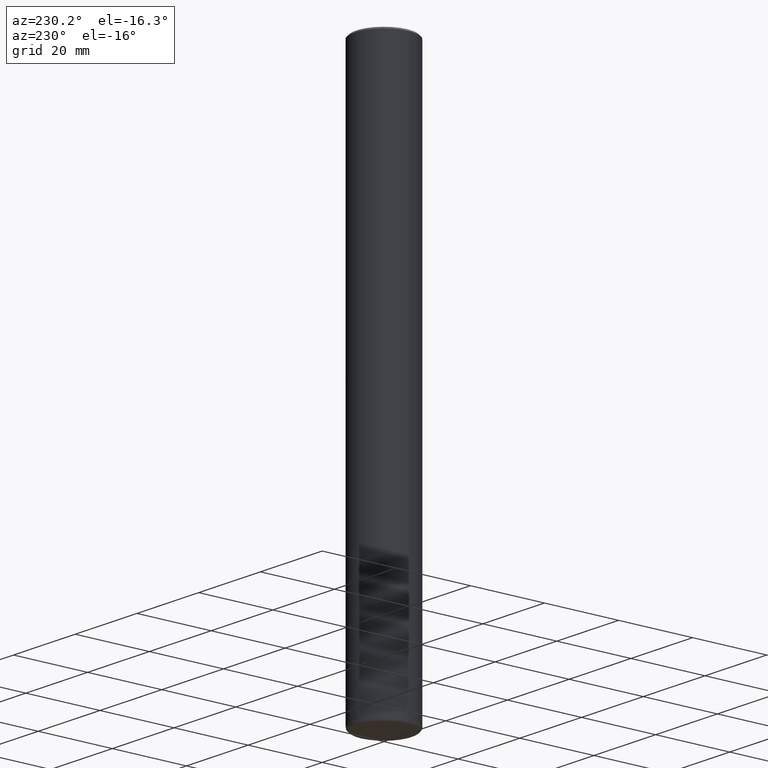
[diagram: clean part render]
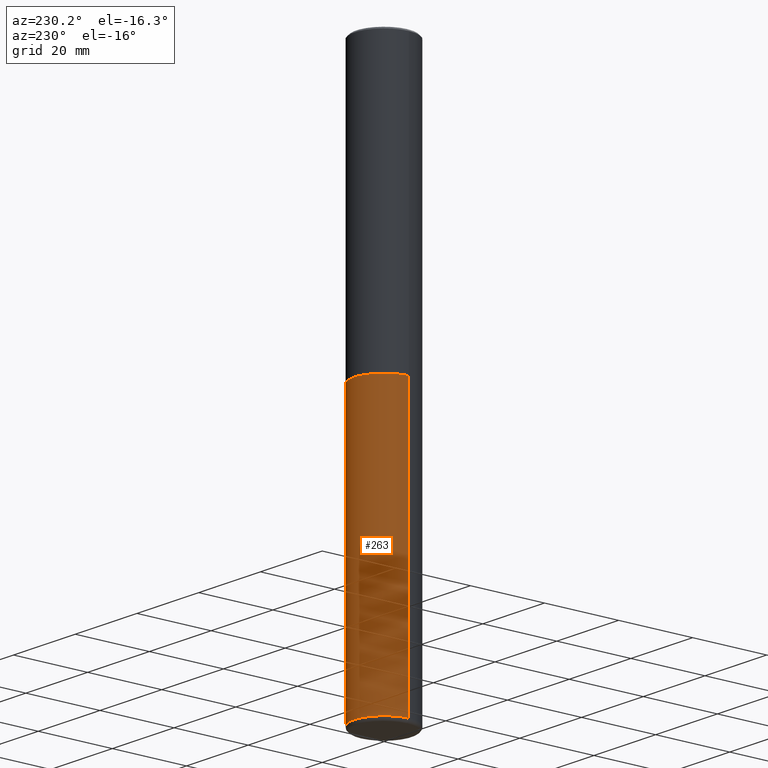
[diagram: same view with one face highlighted and labeled with its STEP entity id]
A machine part, auxiliary view. The second image highlights one B-rep face of the part: STEP entity #263.
In plain terms, the highlighted cylindrical surface (partial cylindrical patch) has radius 7.9997 mm, axis along (-0, 0, 1).
Its self-contained STEP definition (entity closure, byte-faithful):
#12 = CARTESIAN_POINT ( 'NONE',  ( 0.3149500000000000077, -1.250858104453944331E-14, -2.952700000000000102 ) ) ;
#17 = DIRECTION ( 'NONE',  ( -2.445468806185136597E-29, 3.491481338843145583E-15, 1.000000000000000000 ) ) ;
#49 = DIRECTION ( 'NONE',  ( 1.000000000000000000, -6.982962677686263555E-15, 0.000000000000000000 ) ) ;
#51 = CARTESIAN_POINT ( 'NONE',  ( 0.000000000000000000, 0.000000000000000000, 0.000000000000000000 ) ) ;
#66 = ORIENTED_EDGE ( 'NONE', *, *, #223, .F. ) ;
#95 = CARTESIAN_POINT ( 'NONE',  ( -0.3149500000000000077, 2.237854346276435590E-15, -1.549218606675782676E-29 ) ) ;
#96 = DIRECTION ( 'NONE',  ( 1.000000000000000000, -6.982962677686263555E-15, 0.000000000000000000 ) ) ;
#109 = VERTEX_POINT ( 'NONE', #12 ) ;
#119 = LINE ( 'NONE', #95, #222 ) ;
#129 = EDGE_CURVE ( 'NONE', #162, #290, #314, .T. ) ;
#155 = AXIS2_PLACEMENT_3D ( 'NONE', #214, #336, #49 ) ;
#159 = VECTOR ( 'NONE', #344, 39.37007874015748143 ) ;
#162 = VERTEX_POINT ( 'NONE', #407 ) ;
#180 = DIRECTION ( 'NONE',  ( -2.445468806185136597E-29, 3.491481338843145583E-15, 1.000000000000000000 ) ) ;
#186 = CARTESIAN_POINT ( 'NONE',  ( 0.3149500000000000077, -2.199284095337289871E-15, 1.535751875536930130E-29 ) ) ;
#189 = CYLINDRICAL_SURFACE ( 'NONE', #268, 0.3149500000000000077 ) ;
#199 = CARTESIAN_POINT ( 'NONE',  ( -0.3149500000000000077, -1.315748346921853027E-14, -2.952700000000000102 ) ) ;
#214 = CARTESIAN_POINT ( 'NONE',  ( 1.434536456396262923E-28, -2.048137868178777591E-14, -5.866100000000000314 ) ) ;
#221 = EDGE_CURVE ( 'NONE', #290, #359, #119, .T. ) ;
#222 = VECTOR ( 'NONE', #379, 39.37007874015748143 ) ;
#223 = EDGE_CURVE ( 'NONE', #162, #109, #338, .T. ) ;
#249 = EDGE_CURVE ( 'NONE', #109, #359, #345, .T. ) ;
#260 = ORIENTED_EDGE ( 'NONE', *, *, #249, .F. ) ;
#263 = ADVANCED_FACE ( 'NONE', ( #343 ), #189, .T. ) ;
#268 = AXIS2_PLACEMENT_3D ( 'NONE', #51, #180, #306 ) ;
#290 = VERTEX_POINT ( 'NONE', #401 ) ;
#293 = AXIS2_PLACEMENT_3D ( 'NONE', #313, #17, #96 ) ;
#294 = ORIENTED_EDGE ( 'NONE', *, *, #129, .T. ) ;
#306 = DIRECTION ( 'NONE',  ( 1.000000000000000000, -6.982962677686266711E-15, 4.876176775795936353E-29 ) ) ;
#313 = CARTESIAN_POINT ( 'NONE',  ( 7.220735744022852519E-29, -1.030929694920215502E-14, -2.952700000000000102 ) ) ;
#314 = CIRCLE ( 'NONE', #155, 0.3149500000000000077 ) ;
#336 = DIRECTION ( 'NONE',  ( -2.445468806185136597E-29, 3.491481338843145583E-15, 1.000000000000000000 ) ) ;
#338 = LINE ( 'NONE', #186, #159 ) ;
#343 = FACE_OUTER_BOUND ( 'NONE', #412, .T. ) ;
#344 = DIRECTION ( 'NONE',  ( -2.445468806185136877E-29, 3.491481338843145188E-15, 1.000000000000000000 ) ) ;
#345 = CIRCLE ( 'NONE', #293, 0.3149500000000000077 ) ;
#354 = ORIENTED_EDGE ( 'NONE', *, *, #221, .T. ) ;
#359 = VERTEX_POINT ( 'NONE', #199 ) ;
#379 = DIRECTION ( 'NONE',  ( -2.445468806185136877E-29, 3.491481338843145188E-15, 1.000000000000000000 ) ) ;
#401 = CARTESIAN_POINT ( 'NONE',  ( -0.3149499999999998967, -1.824352433551134308E-14, -5.866100000000000314 ) ) ;
#407 = CARTESIAN_POINT ( 'NONE',  ( 0.3149499999999998967, -2.268066277712506420E-14, -5.866100000000000314 ) ) ;
#412 = EDGE_LOOP ( 'NONE', ( #294, #354, #260, #66 ) ) ;